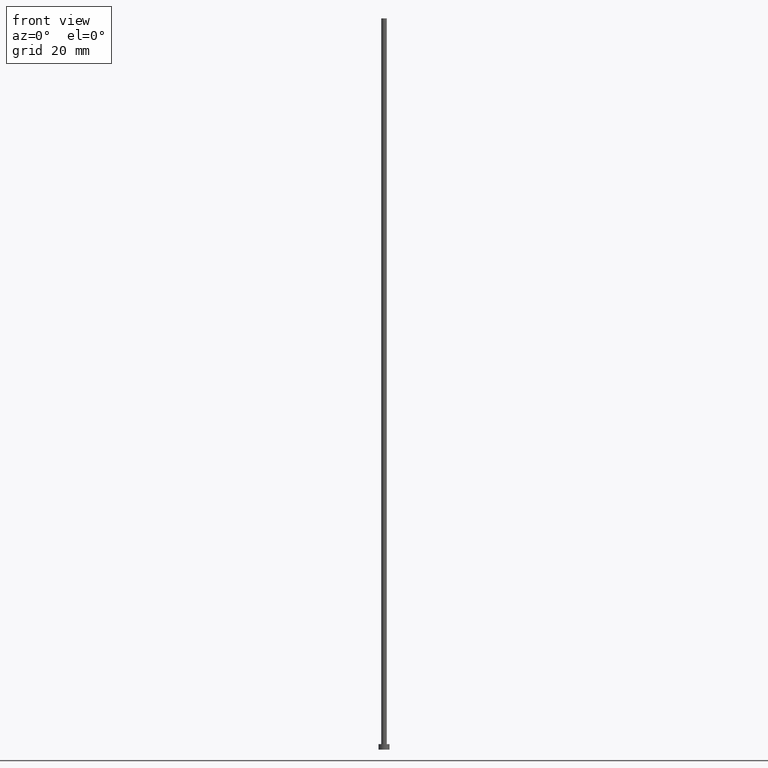
[diagram: clean part render]
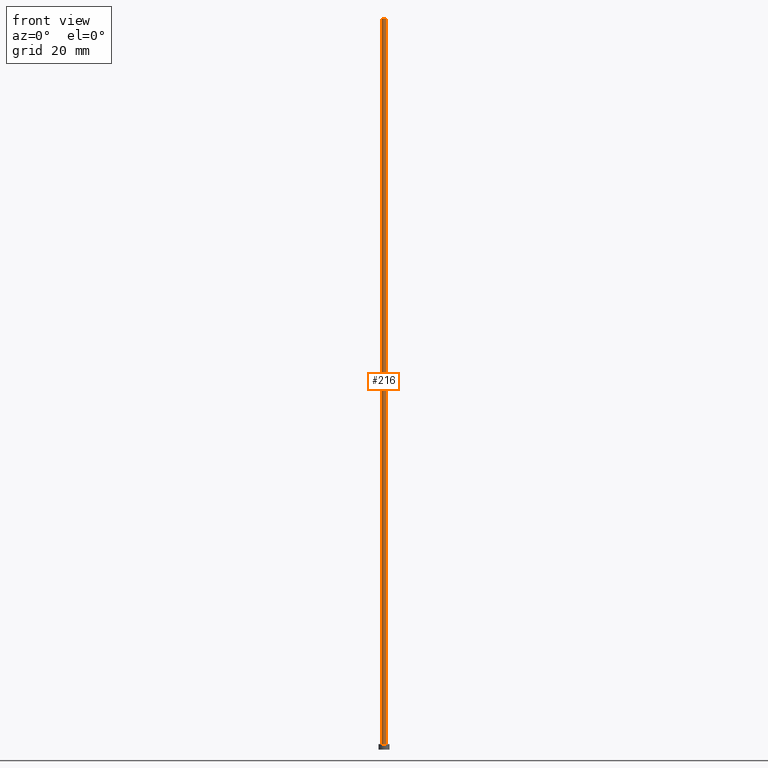
[diagram: same view with one face highlighted and labeled with its STEP entity id]
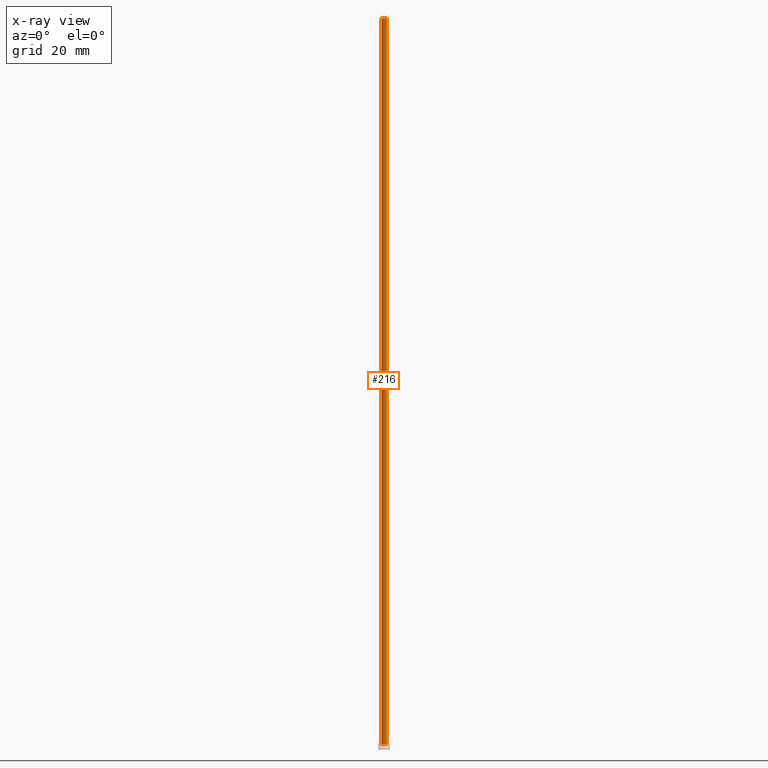
[diagram: x-ray of the same camera — body ghosted, the highlighted face saturated]
A machine part, front view. The second image highlights one B-rep face of the part: STEP entity #216.
The next image is the same camera in x-ray: the body ghosted, the highlighted face saturated — about 0% of this face is hidden behind the body in this view.
In plain terms, the highlighted cylindrical surface (edge-blend (fillet) strip) has radius 0.75 mm, axis along (-0, -0, -1).
Its self-contained STEP definition (entity closure, byte-faithful):
#10 = EDGE_LOOP ( 'NONE', ( #81, #24, #140, #104 ) ) ;
#18 = DIRECTION ( 'NONE',  ( 1.000000000000000000, 0.000000000000000000, 0.000000000000000000 ) ) ;
#19 = DIRECTION ( 'NONE',  ( 1.000000000000000000, 0.000000000000000000, 0.000000000000000000 ) ) ;
#21 = CIRCLE ( 'NONE', #45, 0.7500000000000001110 ) ;
#24 = ORIENTED_EDGE ( 'NONE', *, *, #179, .F. ) ;
#32 = DIRECTION ( 'NONE',  ( -0.000000000000000000, -0.000000000000000000, -1.000000000000000000 ) ) ;
#38 = CIRCLE ( 'NONE', #113, 0.7500000000000001110 ) ;
#44 = CARTESIAN_POINT ( 'NONE',  ( 0.7500000000000001110, 9.184850993605150903E-17, 200.0000000000000000 ) ) ;
#45 = AXIS2_PLACEMENT_3D ( 'NONE', #229, #205, #18 ) ;
#60 = LINE ( 'NONE', #44, #126 ) ;
#61 = CARTESIAN_POINT ( 'NONE',  ( 0.7500000000000001110, 9.184850993605150903E-17, 200.0000000000000000 ) ) ;
#70 = AXIS2_PLACEMENT_3D ( 'NONE', #145, #32, #89 ) ;
#74 = VERTEX_POINT ( 'NONE', #223 ) ;
#81 = ORIENTED_EDGE ( 'NONE', *, *, #176, .F. ) ;
#89 = DIRECTION ( 'NONE',  ( -1.000000000000000000, 0.000000000000000000, 0.000000000000000000 ) ) ;
#92 = DIRECTION ( 'NONE',  ( -0.000000000000000000, -0.000000000000000000, -1.000000000000000000 ) ) ;
#104 = ORIENTED_EDGE ( 'NONE', *, *, #143, .T. ) ;
#105 = CARTESIAN_POINT ( 'NONE',  ( -0.7500000000000001110, 0.000000000000000000, 200.0000000000000000 ) ) ;
#108 = FACE_OUTER_BOUND ( 'NONE', #10, .T. ) ;
#109 = CARTESIAN_POINT ( 'NONE',  ( 0.7500000000000001110, 9.184850993605150903E-17, 1.500000000000000000 ) ) ;
#113 = AXIS2_PLACEMENT_3D ( 'NONE', #250, #149, #19 ) ;
#122 = VERTEX_POINT ( 'NONE', #109 ) ;
#126 = VECTOR ( 'NONE', #226, 1000.000000000000000 ) ;
#128 = EDGE_CURVE ( 'NONE', #156, #74, #194, .T. ) ;
#140 = ORIENTED_EDGE ( 'NONE', *, *, #128, .T. ) ;
#143 = EDGE_CURVE ( 'NONE', #74, #122, #38, .T. ) ;
#145 = CARTESIAN_POINT ( 'NONE',  ( 0.000000000000000000, 0.000000000000000000, 200.0000000000000000 ) ) ;
#149 = DIRECTION ( 'NONE',  ( 0.000000000000000000, 0.000000000000000000, 1.000000000000000000 ) ) ;
#156 = VERTEX_POINT ( 'NONE', #105 ) ;
#171 = CYLINDRICAL_SURFACE ( 'NONE', #70, 0.7500000000000001110 ) ;
#176 = EDGE_CURVE ( 'NONE', #187, #122, #60, .T. ) ;
#179 = EDGE_CURVE ( 'NONE', #156, #187, #21, .T. ) ;
#187 = VERTEX_POINT ( 'NONE', #61 ) ;
#192 = CARTESIAN_POINT ( 'NONE',  ( -0.7500000000000001110, 0.000000000000000000, 200.0000000000000000 ) ) ;
#194 = LINE ( 'NONE', #192, #214 ) ;
#205 = DIRECTION ( 'NONE',  ( 0.000000000000000000, 0.000000000000000000, 1.000000000000000000 ) ) ;
#214 = VECTOR ( 'NONE', #92, 1000.000000000000000 ) ;
#216 = ADVANCED_FACE ( 'NONE', ( #108 ), #171, .T. ) ;
#223 = CARTESIAN_POINT ( 'NONE',  ( -0.7500000000000001110, 0.000000000000000000, 1.500000000000000000 ) ) ;
#226 = DIRECTION ( 'NONE',  ( -0.000000000000000000, -0.000000000000000000, -1.000000000000000000 ) ) ;
#229 = CARTESIAN_POINT ( 'NONE',  ( 0.000000000000000000, 0.000000000000000000, 200.0000000000000000 ) ) ;
#250 = CARTESIAN_POINT ( 'NONE',  ( 0.000000000000000000, 0.000000000000000000, 1.500000000000000000 ) ) ;